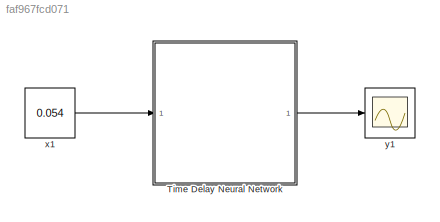
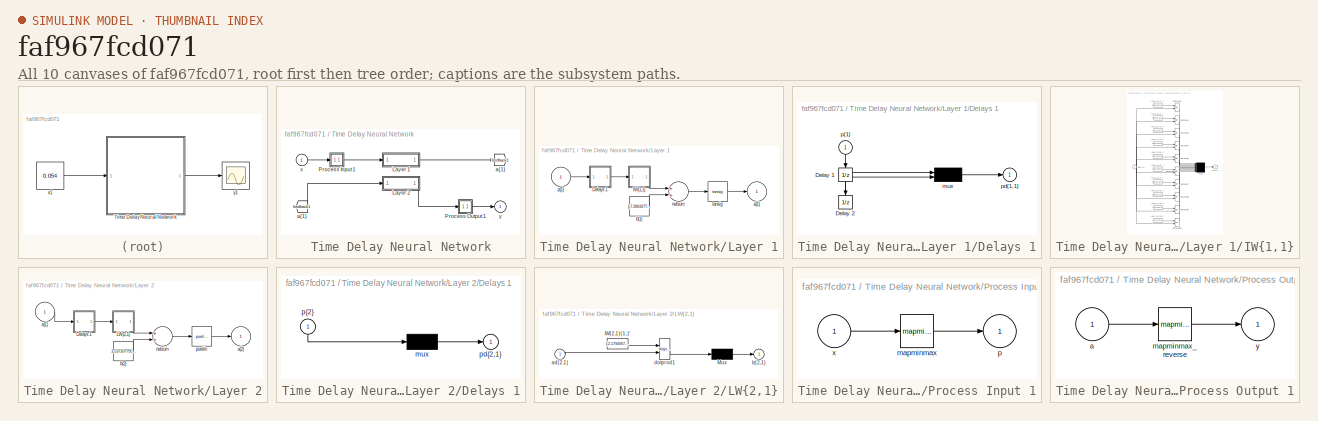
[diagram: thumbnail index - all 10 canvases of the model, root first then tree order]
MODEL slx_faf967fcd071
KIND model
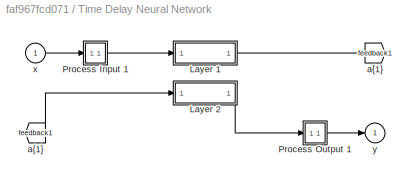
BLOCK [SubSystem] Time Delay Neural Network
  Ports = [1, 1]
  RequestExecContextInheritance = off
BLOCK [From] Time Delay Neural Network/ a{1} 
  GotoTag = feedback1
BLOCK [SubSystem] Time Delay Neural Network/Layer 1
  Ports = [1, 1]
  RequestExecContextInheritance = off
BLOCK [SubSystem] Time Delay Neural Network/Layer 1/Delays 1
  Ports = [1, 1]
  RequestExecContextInheritance = off
BLOCK [UnitDelay] Time Delay Neural Network/Layer 1/Delays 1/Delay 1
  InitialCondition = pi_input_1_delayed_1
BLOCK [UnitDelay] Time Delay Neural Network/Layer 1/Delays 1/Delay 2
  InitialCondition = pi_input_1_delayed_2
BLOCK [Mux] Time Delay Neural Network/Layer 1/Delays 1/mux
  Inputs = 2
  Ports = [2, 1]
BLOCK [Outport] Time Delay Neural Network/Layer 1/Delays 1/pd{1,1}
  IconDisplay = Port number
BLOCK [Inport] Time Delay Neural Network/Layer 1/Delays 1/p{1}
  IconDisplay = Port number
  PortDimensions = 1
  SampleTime = 1
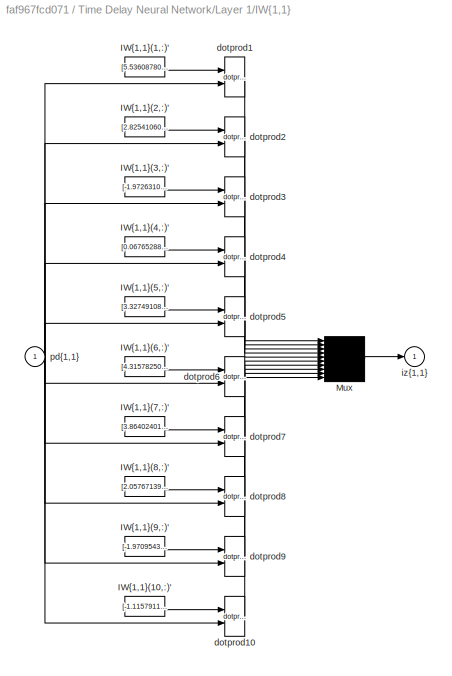
BLOCK [SubSystem] Time Delay Neural Network/Layer 1/IW{1,1}
  Ports = [1, 1]
  RequestExecContextInheritance = off
BLOCK [Constant] Time Delay Neural Network/Layer 1/IW{1,1}/IW{1,1}(1,:)'
  Value = [5.536087804288683;3.0869750189440106]
BLOCK [Constant] Time Delay Neural Network/Layer 1/IW{1,1}/IW{1,1}(10,:)'
  Value = [-1.11579116472533;-4.4783988955372589]
BLOCK [Constant] Time Delay Neural Network/Layer 1/IW{1,1}/IW{1,1}(2,:)'
  Value = [2.8254106034155373;3.2838893568865597]
BLOCK [Constant] Time Delay Neural Network/Layer 1/IW{1,1}/IW{1,1}(3,:)'
  Value = [-1.9726310416765029;3.9629130292248504]
BLOCK [Constant] Time Delay Neural Network/Layer 1/IW{1,1}/IW{1,1}(4,:)'
  Value = [0.067652885708935961;-4.3828456404196583]
BLOCK [Constant] Time Delay Neural Network/Layer 1/IW{1,1}/IW{1,1}(5,:)'
  Value = [3.3274910882059334;2.9247038143247792]
BLOCK [Constant] Time Delay Neural Network/Layer 1/IW{1,1}/IW{1,1}(6,:)'
  Value = [4.315782504966851;-0.94645863080891812]
BLOCK [Constant] Time Delay Neural Network/Layer 1/IW{1,1}/IW{1,1}(7,:)'
  Value = [3.8640240185110142;-2.1689842933267727]
BLOCK [Constant] Time Delay Neural Network/Layer 1/IW{1,1}/IW{1,1}(8,:)'
  Value = [2.0576713995005509;-5.2947952560285971]
BLOCK [Constant] Time Delay Neural Network/Layer 1/IW{1,1}/IW{1,1}(9,:)'
  Value = [-1.9709543411230475;4.0636883910690242]
BLOCK [Mux] Time Delay Neural Network/Layer 1/IW{1,1}/Mux
  Inputs = 10
  Ports = [10, 1]
BLOCK [Reference] Time Delay Neural Network/Layer 1/IW{1,1}/dotprod1  REF=neural/Weight Functions/dotprod
  Ports = [2, 1]
  SourceBlock = neural/Weight Functions/dotprod
  SourceType = DOTPROD
BLOCK [Reference] Time Delay Neural Network/Layer 1/IW{1,1}/dotprod10  REF=neural/Weight Functions/dotprod
  Ports = [2, 1]
  SourceBlock = neural/Weight Functions/dotprod
  SourceType = DOTPROD
BLOCK [Reference] Time Delay Neural Network/Layer 1/IW{1,1}/dotprod2  REF=neural/Weight Functions/dotprod
  Ports = [2, 1]
  SourceBlock = neural/Weight Functions/dotprod
  SourceType = DOTPROD
BLOCK [Reference] Time Delay Neural Network/Layer 1/IW{1,1}/dotprod3  REF=neural/Weight Functions/dotprod
  Ports = [2, 1]
  SourceBlock = neural/Weight Functions/dotprod
  SourceType = DOTPROD
BLOCK [Reference] Time Delay Neural Network/Layer 1/IW{1,1}/dotprod4  REF=neural/Weight Functions/dotprod
  Ports = [2, 1]
  SourceBlock = neural/Weight Functions/dotprod
  SourceType = DOTPROD
BLOCK [Reference] Time Delay Neural Network/Layer 1/IW{1,1}/dotprod5  REF=neural/Weight Functions/dotprod
  Ports = [2, 1]
  SourceBlock = neural/Weight Functions/dotprod
  SourceType = DOTPROD
BLOCK [Reference] Time Delay Neural Network/Layer 1/IW{1,1}/dotprod6  REF=neural/Weight Functions/dotprod
  Ports = [2, 1]
  SourceBlock = neural/Weight Functions/dotprod
  SourceType = DOTPROD
BLOCK [Reference] Time Delay Neural Network/Layer 1/IW{1,1}/dotprod7  REF=neural/Weight Functions/dotprod
  Ports = [2, 1]
  SourceBlock = neural/Weight Functions/dotprod
  SourceType = DOTPROD
BLOCK [Reference] Time Delay Neural Network/Layer 1/IW{1,1}/dotprod8  REF=neural/Weight Functions/dotprod
  Ports = [2, 1]
  SourceBlock = neural/Weight Functions/dotprod
  SourceType = DOTPROD
BLOCK [Reference] Time Delay Neural Network/Layer 1/IW{1,1}/dotprod9  REF=neural/Weight Functions/dotprod
  Ports = [2, 1]
  SourceBlock = neural/Weight Functions/dotprod
  SourceType = DOTPROD
BLOCK [Outport] Time Delay Neural Network/Layer 1/IW{1,1}/iz{1,1}
  IconDisplay = Port number
BLOCK [Inport] Time Delay Neural Network/Layer 1/IW{1,1}/pd{1,1}
  IconDisplay = Port number
  PortDimensions = 2
  SampleTime = 1
BLOCK [Outport] Time Delay Neural Network/Layer 1/a{1}
  IconDisplay = Port number
  InitialOutput = [0;0;0;0;0;0;0;0;0;0]
BLOCK [Constant] Time Delay Neural Network/Layer 1/b{1}
  Value = [-7.3963277748665996;-3.4957048062171721;2.4614606163795014;1.6221079679725385;-0.36952633214763198;0.64550214638793868;1.501026865457187;3.0623465009571755;-3.2650575909006192;-4.2398615332036362]
BLOCK [Sum] Time Delay Neural Network/Layer 1/netsum
  Inputs = 2
  Ports = [2, 1]
BLOCK [Inport] Time Delay Neural Network/Layer 1/p{1}
  IconDisplay = Port number
  PortDimensions = 1
  SampleTime = 1
BLOCK [Reference] Time Delay Neural Network/Layer 1/tansig  REF=neural/Transfer Functions/tansig
  Ports = [1, 1]
  SourceBlock = neural/Transfer Functions/tansig
  SourceType = TANSIG
BLOCK [SubSystem] Time Delay Neural Network/Layer 2
  Ports = [1, 1]
  RequestExecContextInheritance = off
BLOCK [SubSystem] Time Delay Neural Network/Layer 2/Delays 1
  Ports = [1, 1]
  RequestExecContextInheritance = off
BLOCK [Mux] Time Delay Neural Network/Layer 2/Delays 1/mux
  Inputs = 1
  Ports = [1, 1]
BLOCK [Outport] Time Delay Neural Network/Layer 2/Delays 1/pd{2,1}
  IconDisplay = Port number
BLOCK [Inport] Time Delay Neural Network/Layer 2/Delays 1/p{2}
  IconDisplay = Port number
  PortDimensions = 10
  SampleTime = 1
BLOCK [SubSystem] Time Delay Neural Network/Layer 2/LW{2,1}
  Ports = [1, 1]
  RequestExecContextInheritance = off
BLOCK [Constant] Time Delay Neural Network/Layer 2/LW{2,1}/IW{2,1}(1,:)'
  Value = [-2.1794067520280507;-0.38245418590945618;-0.045398644338357705;0.08095165161319319;-0.035632436034392007;0.51084628042475777;0.8366329425518364;-5.6195889889807447;0.076688702722380833;0.40687341914369402]
BLOCK [Mux] Time Delay Neural Network/Layer 2/LW{2,1}/Mux
  Inputs = 1
  Ports = [1, 1]
BLOCK [Inport] Time Delay Neural Network/Layer 2/LW{2,1}/ad{2,1}
  IconDisplay = Port number
  PortDimensions = 10
  SampleTime = 1
BLOCK [Reference] Time Delay Neural Network/Layer 2/LW{2,1}/dotprod1  REF=neural/Weight Functions/dotprod
  Ports = [2, 1]
  SourceBlock = neural/Weight Functions/dotprod
  SourceType = DOTPROD
BLOCK [Outport] Time Delay Neural Network/Layer 2/LW{2,1}/lz{2,1}
  IconDisplay = Port number
BLOCK [Inport] Time Delay Neural Network/Layer 2/a{1} 
  IconDisplay = Port number
  PortDimensions = 10
  SampleTime = 1
BLOCK [Outport] Time Delay Neural Network/Layer 2/a{2}
  IconDisplay = Port number
  InitialOutput = 0
BLOCK [Constant] Time Delay Neural Network/Layer 2/b{2}
  Value = 1.5371077950800276
BLOCK [Sum] Time Delay Neural Network/Layer 2/netsum
  Inputs = 2
  Ports = [2, 1]
BLOCK [Reference] Time Delay Neural Network/Layer 2/purelin  REF=neural/Transfer Functions/purelin
  Ports = [1, 1]
  SourceBlock = neural/Transfer Functions/purelin
  SourceType = PURELIN
BLOCK [SubSystem] Time Delay Neural Network/Process Input 1
  Ports = [1, 1]
  RequestExecContextInheritance = off
BLOCK [Reference] Time Delay Neural Network/Process Input 1/mapminmax  REF=neural/Processing Functions/mapminmax
  Ports = [1, 1]
  SourceBlock = neural/Processing Functions/mapminmax
  SourceType = MAPMINMAX Preprocess
  xmax = 5.699996780124934
  xmin = -36.120280820176681
  ymax = 1
  ymin = -1
BLOCK [Outport] Time Delay Neural Network/Process Input 1/p
  IconDisplay = Port number
  PortDimensions = 1
  SampleTime = 1
BLOCK [Inport] Time Delay Neural Network/Process Input 1/x
  IconDisplay = Port number
  PortDimensions = 1
  SampleTime = 1
BLOCK [SubSystem] Time Delay Neural Network/Process Output 1
  Ports = [1, 1]
  RequestExecContextInheritance = off
BLOCK [Inport] Time Delay Neural Network/Process Output 1/a
  IconDisplay = Port number
  PortDimensions = 1
  SampleTime = 1
BLOCK [Reference] Time Delay Neural Network/Process Output 1/mapminmax_reverse  REF=neural/Processing Functions/mapminmax_reverse
  Ports = [1, 1]
  SourceBlock = neural/Processing Functions/mapminmax_reverse
  SourceType = MAPMINMAX Reverse Process
  xmax = 0.11397613285199074
  xmin = -0.20018082437666743
  ymax = 1
  ymin = -1
BLOCK [Outport] Time Delay Neural Network/Process Output 1/y
  IconDisplay = Port number
  PortDimensions = 1
  SampleTime = 1
BLOCK [Goto] Time Delay Neural Network/a{1}
  GotoTag = feedback1
BLOCK [Inport] Time Delay Neural Network/x
  IconDisplay = Port number
  PortDimensions = 1
  SampleTime = 1
BLOCK [Outport] Time Delay Neural Network/y
  IconDisplay = Port number
  InitialOutput = 0
BLOCK [Constant] x1
  SampleTime = 1
  Value = 0.054
BLOCK [Scope] y1
  Floating = off
  NumInputPorts = 1
  Ports = [1]
  ShowLegends = off
LINE Time Delay Neural Network/ a{1} :1 -> Time Delay Neural Network/Layer 2:1
NET Time Delay Neural Network/Layer 1/Delays 1/Delay 1:1 -> Time Delay Neural Network/Layer 1/Delays 1/Delay 2:1, Time Delay Neural Network/Layer 1/Delays 1/mux:1
LINE Time Delay Neural Network/Layer 1/Delays 1/Delay 2:1 -> Time Delay Neural Network/Layer 1/Delays 1/mux:2
LINE Time Delay Neural Network/Layer 1/Delays 1/mux:1 -> Time Delay Neural Network/Layer 1/Delays 1/pd{1,1}:1
LINE Time Delay Neural Network/Layer 1/Delays 1/p{1}:1 -> Time Delay Neural Network/Layer 1/Delays 1/Delay 1:1
LINE Time Delay Neural Network/Layer 1/Delays 1:1 -> Time Delay Neural Network/Layer 1/IW{1,1}:1
LINE Time Delay Neural Network/Layer 1/IW{1,1}/IW{1,1}(1,:)':1 -> Time Delay Neural Network/Layer 1/IW{1,1}/dotprod1:1
LINE Time Delay Neural Network/Layer 1/IW{1,1}/IW{1,1}(10,:)':1 -> Time Delay Neural Network/Layer 1/IW{1,1}/dotprod10:1
LINE Time Delay Neural Network/Layer 1/IW{1,1}/IW{1,1}(2,:)':1 -> Time Delay Neural Network/Layer 1/IW{1,1}/dotprod2:1
LINE Time Delay Neural Network/Layer 1/IW{1,1}/IW{1,1}(3,:)':1 -> Time Delay Neural Network/Layer 1/IW{1,1}/dotprod3:1
LINE Time Delay Neural Network/Layer 1/IW{1,1}/IW{1,1}(4,:)':1 -> Time Delay Neural Network/Layer 1/IW{1,1}/dotprod4:1
LINE Time Delay Neural Network/Layer 1/IW{1,1}/IW{1,1}(5,:)':1 -> Time Delay Neural Network/Layer 1/IW{1,1}/dotprod5:1
LINE Time Delay Neural Network/Layer 1/IW{1,1}/IW{1,1}(6,:)':1 -> Time Delay Neural Network/Layer 1/IW{1,1}/dotprod6:1
LINE Time Delay Neural Network/Layer 1/IW{1,1}/IW{1,1}(7,:)':1 -> Time Delay Neural Network/Layer 1/IW{1,1}/dotprod7:1
LINE Time Delay Neural Network/Layer 1/IW{1,1}/IW{1,1}(8,:)':1 -> Time Delay Neural Network/Layer 1/IW{1,1}/dotprod8:1
LINE Time Delay Neural Network/Layer 1/IW{1,1}/IW{1,1}(9,:)':1 -> Time Delay Neural Network/Layer 1/IW{1,1}/dotprod9:1
LINE Time Delay Neural Network/Layer 1/IW{1,1}/Mux:1 -> Time Delay Neural Network/Layer 1/IW{1,1}/iz{1,1}:1
LINE Time Delay Neural Network/Layer 1/IW{1,1}/dotprod10:1 -> Time Delay Neural Network/Layer 1/IW{1,1}/Mux:10
LINE Time Delay Neural Network/Layer 1/IW{1,1}/dotprod1:1 -> Time Delay Neural Network/Layer 1/IW{1,1}/Mux:1
LINE Time Delay Neural Network/Layer 1/IW{1,1}/dotprod2:1 -> Time Delay Neural Network/Layer 1/IW{1,1}/Mux:2
LINE Time Delay Neural Network/Layer 1/IW{1,1}/dotprod3:1 -> Time Delay Neural Network/Layer 1/IW{1,1}/Mux:3
LINE Time Delay Neural Network/Layer 1/IW{1,1}/dotprod4:1 -> Time Delay Neural Network/Layer 1/IW{1,1}/Mux:4
LINE Time Delay Neural Network/Layer 1/IW{1,1}/dotprod5:1 -> Time Delay Neural Network/Layer 1/IW{1,1}/Mux:5
LINE Time Delay Neural Network/Layer 1/IW{1,1}/dotprod6:1 -> Time Delay Neural Network/Layer 1/IW{1,1}/Mux:6
LINE Time Delay Neural Network/Layer 1/IW{1,1}/dotprod7:1 -> Time Delay Neural Network/Layer 1/IW{1,1}/Mux:7
LINE Time Delay Neural Network/Layer 1/IW{1,1}/dotprod8:1 -> Time Delay Neural Network/Layer 1/IW{1,1}/Mux:8
LINE Time Delay Neural Network/Layer 1/IW{1,1}/dotprod9:1 -> Time Delay Neural Network/Layer 1/IW{1,1}/Mux:9
NET Time Delay Neural Network/Layer 1/IW{1,1}/pd{1,1}:1 -> Time Delay Neural Network/Layer 1/IW{1,1}/dotprod10:2, Time Delay Neural Network/Layer 1/IW{1,1}/dotprod1:2, Time Delay Neural Network/Layer 1/IW{1,1}/dotprod2:2, Time Delay Neural Network/Layer 1/IW{1,1}/dotprod3:2, Time Delay Neural Network/Layer 1/IW{1,1}/dotprod4:2, Time Delay Neural Network/Layer 1/IW{1,1}/dotprod5:2, Time Delay Neural Network/Layer 1/IW{1,1}/dotprod6:2, Time Delay Neural Network/Layer 1/IW{1,1}/dotprod7:2, Time Delay Neural Network/Layer 1/IW{1,1}/dotprod8:2, Time Delay Neural Network/Layer 1/IW{1,1}/dotprod9:2
LINE Time Delay Neural Network/Layer 1/IW{1,1}:1 -> Time Delay Neural Network/Layer 1/netsum:1
LINE Time Delay Neural Network/Layer 1/b{1}:1 -> Time Delay Neural Network/Layer 1/netsum:2
LINE Time Delay Neural Network/Layer 1/netsum:1 -> Time Delay Neural Network/Layer 1/tansig:1
LINE Time Delay Neural Network/Layer 1/p{1}:1 -> Time Delay Neural Network/Layer 1/Delays 1:1
LINE Time Delay Neural Network/Layer 1/tansig:1 -> Time Delay Neural Network/Layer 1/a{1}:1
LINE Time Delay Neural Network/Layer 1:1 -> Time Delay Neural Network/a{1}:1
LINE Time Delay Neural Network/Layer 2/Delays 1/mux:1 -> Time Delay Neural Network/Layer 2/Delays 1/pd{2,1}:1
LINE Time Delay Neural Network/Layer 2/Delays 1/p{2}:1 -> Time Delay Neural Network/Layer 2/Delays 1/mux:1
LINE Time Delay Neural Network/Layer 2/Delays 1:1 -> Time Delay Neural Network/Layer 2/LW{2,1}:1
LINE Time Delay Neural Network/Layer 2/LW{2,1}/IW{2,1}(1,:)':1 -> Time Delay Neural Network/Layer 2/LW{2,1}/dotprod1:1
LINE Time Delay Neural Network/Layer 2/LW{2,1}/Mux:1 -> Time Delay Neural Network/Layer 2/LW{2,1}/lz{2,1}:1
LINE Time Delay Neural Network/Layer 2/LW{2,1}/ad{2,1}:1 -> Time Delay Neural Network/Layer 2/LW{2,1}/dotprod1:2
LINE Time Delay Neural Network/Layer 2/LW{2,1}/dotprod1:1 -> Time Delay Neural Network/Layer 2/LW{2,1}/Mux:1
LINE Time Delay Neural Network/Layer 2/LW{2,1}:1 -> Time Delay Neural Network/Layer 2/netsum:1
LINE Time Delay Neural Network/Layer 2/a{1} :1 -> Time Delay Neural Network/Layer 2/Delays 1:1
LINE Time Delay Neural Network/Layer 2/b{2}:1 -> Time Delay Neural Network/Layer 2/netsum:2
LINE Time Delay Neural Network/Layer 2/netsum:1 -> Time Delay Neural Network/Layer 2/purelin:1
LINE Time Delay Neural Network/Layer 2/purelin:1 -> Time Delay Neural Network/Layer 2/a{2}:1
LINE Time Delay Neural Network/Layer 2:1 -> Time Delay Neural Network/Process Output 1:1
LINE Time Delay Neural Network/Process Input 1/mapminmax:1 -> Time Delay Neural Network/Process Input 1/p:1
LINE Time Delay Neural Network/Process Input 1/x:1 -> Time Delay Neural Network/Process Input 1/mapminmax:1
LINE Time Delay Neural Network/Process Input 1:1 -> Time Delay Neural Network/Layer 1:1
LINE Time Delay Neural Network/Process Output 1/a:1 -> Time Delay Neural Network/Process Output 1/mapminmax_reverse:1
LINE Time Delay Neural Network/Process Output 1/mapminmax_reverse:1 -> Time Delay Neural Network/Process Output 1/y:1
LINE Time Delay Neural Network/Process Output 1:1 -> Time Delay Neural Network/y:1
LINE Time Delay Neural Network/x:1 -> Time Delay Neural Network/Process Input 1:1
LINE Time Delay Neural Network:1 -> y1:1
LINE x1:1 -> Time Delay Neural Network:1
note: NET lines group one-source signal fan-out (src -> all destinations, sorted); 1:1 wires keep LINE
